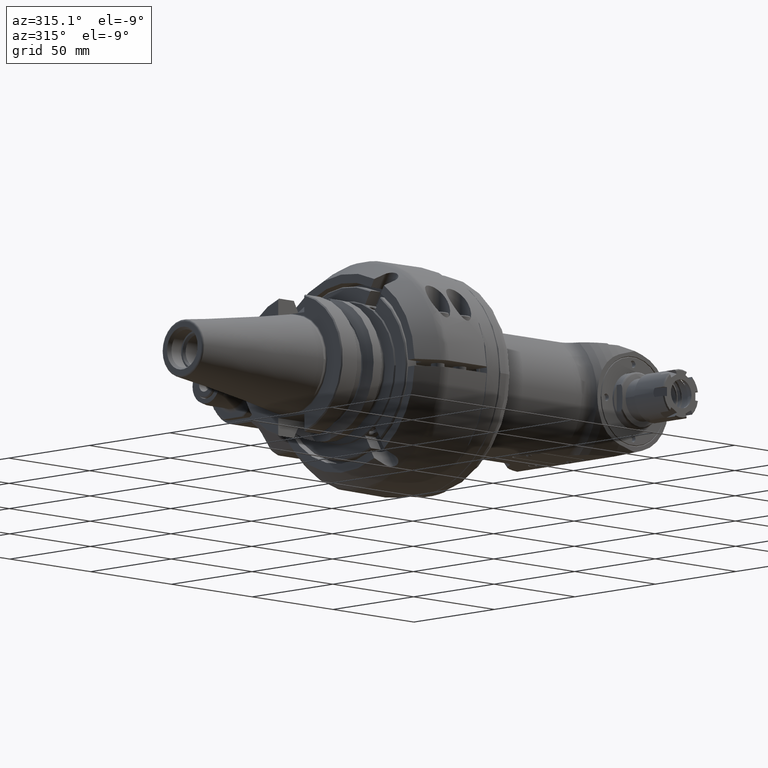
[diagram: clean part render]
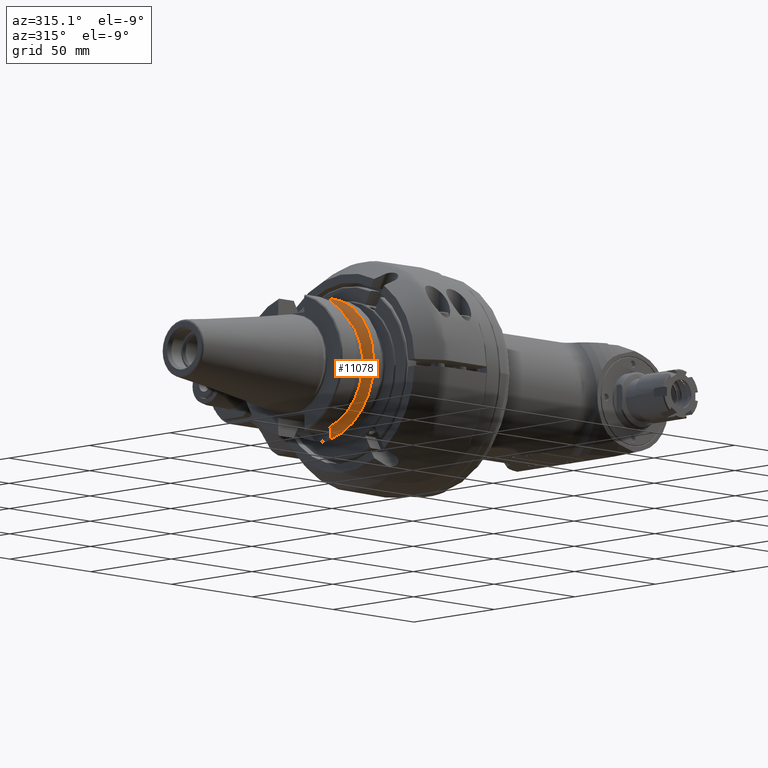
[diagram: same view with one face highlighted and labeled with its STEP entity id]
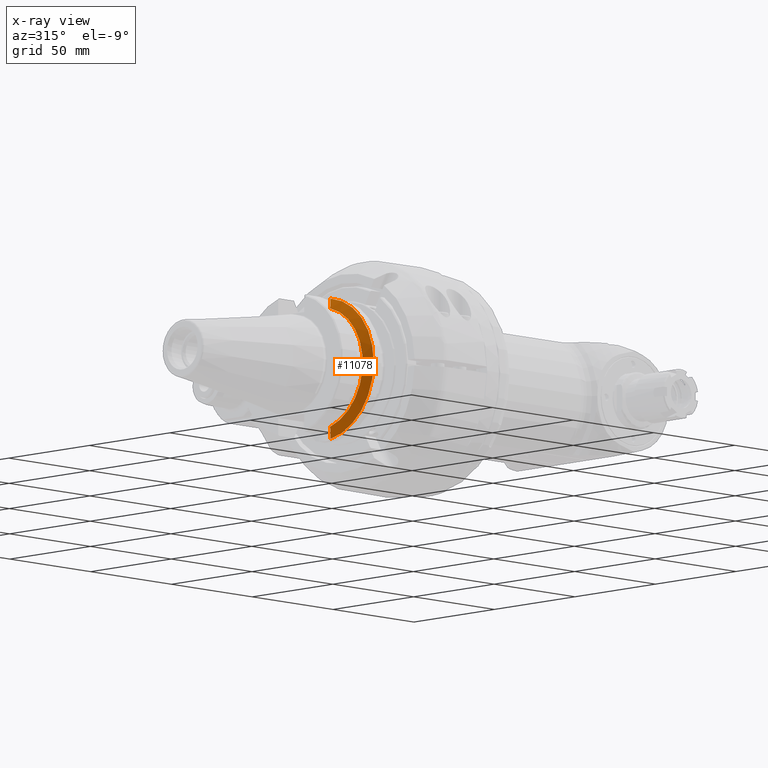
[diagram: x-ray of the same camera — body ghosted, the highlighted face saturated]
A machine part, auxiliary view. The second image highlights one B-rep face of the part: STEP entity #11078.
The next image is the same camera in x-ray: the body ghosted, the highlighted face saturated — about 0% of this face is hidden behind the body in this view.
In plain terms, the highlighted conical surface has half-angle 60 deg.
Its self-contained STEP definition (entity closure, byte-faithful):
#992=CIRCLE('',#12300,1.06967035507559);
#993=CIRCLE('',#12301,1.24015748031496);
#1204=CONICAL_SURFACE('',#12299,1.15491391769528,1.0471975511966);
#1797=FACE_OUTER_BOUND('',#2557,.T.);
#2557=EDGE_LOOP('',(#9769,#9770,#9771,#9772,#9773,#9774));
#2793=B_SPLINE_CURVE_WITH_KNOTS('',3,(#49364,#49365,#49366,#49367,#49368,
#49369),.UNSPECIFIED.,.F.,.F.,(4,2,4),(3.68842051935509,3.99940996028877,
4.23503741983749),.UNSPECIFIED.);
#2794=B_SPLINE_CURVE_WITH_KNOTS('',3,(#49521,#49522,#49523,#49524,#49525,
#49526,#49527,#49528,#49529,#49530,#49531,#49532,#49533,#49534,#49535,#49536),
 .UNSPECIFIED.,.F.,.F.,(4,2,2,2,2,2,2,4),(9.98828740521093E-7,0.00586463509307737,
0.0095562899912753,0.0118105774638015,0.0138441467853587,0.0158462323098269,
0.0177183820111912,0.0196311993223013),.UNSPECIFIED.);
#2803=B_SPLINE_CURVE_WITH_KNOTS('',3,(#49750,#49751,#49752,#49753,#49754,
#49755),.UNSPECIFIED.,.F.,.F.,(4,2,4),(-3.89563791299272,-3.58464847136601,
-3.3490210118173),.UNSPECIFIED.);
#2805=B_SPLINE_CURVE_WITH_KNOTS('',3,(#49933,#49934,#49935,#49936,#49937,
#49938,#49939,#49940,#49941,#49942,#49943,#49944,#49945,#49946,#49947,#49948),
 .UNSPECIFIED.,.F.,.F.,(4,2,2,2,2,2,2,4),(9.99987498796838E-7,0.00389664274996061,
0.00633707127921464,0.00828489843902712,0.0107040959102663,0.014452027372533,
0.0204121680729188,0.0270937158756613),.UNSPECIFIED.);
#5193=VERTEX_POINT('',#49275);
#5198=VERTEX_POINT('',#49362);
#5199=VERTEX_POINT('',#49520);
#5217=VERTEX_POINT('',#49681);
#5218=VERTEX_POINT('',#49749);
#5219=VERTEX_POINT('',#49907);
#6728=EDGE_CURVE('',#5193,#5198,#2793,.T.);
#6729=EDGE_CURVE('',#5199,#5193,#2794,.T.);
#6761=EDGE_CURVE('',#5217,#5218,#2803,.T.);
#6764=EDGE_CURVE('',#5217,#5219,#2805,.T.);
#6765=EDGE_CURVE('',#5218,#5198,#992,.T.);
#6766=EDGE_CURVE('',#5219,#5199,#993,.T.);
#9769=ORIENTED_EDGE('',*,*,#6765,.F.);
#9770=ORIENTED_EDGE('',*,*,#6761,.F.);
#9771=ORIENTED_EDGE('',*,*,#6764,.T.);
#9772=ORIENTED_EDGE('',*,*,#6766,.T.);
#9773=ORIENTED_EDGE('',*,*,#6729,.T.);
#9774=ORIENTED_EDGE('',*,*,#6728,.T.);
#11078=ADVANCED_FACE('',(#1797),#1204,.T.);
#12299=AXIS2_PLACEMENT_3D('',#49949,#15244,#15245);
#12300=AXIS2_PLACEMENT_3D('',#49950,#15246,#15247);
#12301=AXIS2_PLACEMENT_3D('',#49951,#15248,#15249);
#15244=DIRECTION('center_axis',(1.,0.,0.));
#15245=DIRECTION('ref_axis',(0.,-1.,0.));
#15246=DIRECTION('center_axis',(-1.,0.,0.));
#15247=DIRECTION('ref_axis',(0.,-0.253880030800102,-0.967235715821608));
#15248=DIRECTION('center_axis',(-1.,0.,0.));
#15249=DIRECTION('ref_axis',(0.,-1.,0.));
#49275=CARTESIAN_POINT('',(-2.53789423430152,-0.182158519295267,1.22238693915644));
#49362=CARTESIAN_POINT('',(-2.63385826771654,-0.271567942692598,1.03462337158465));
#49364=CARTESIAN_POINT('Ctrl Pts',(-2.53789423697245,-0.182158522432302,
1.22238694279173));
#49365=CARTESIAN_POINT('Ctrl Pts',(-2.55396889651231,-0.20504496554575,
1.19082686587027));
#49366=CARTESIAN_POINT('Ctrl Pts',(-2.57192187175582,-0.224235382339632,
1.15562559762375));
#49367=CARTESIAN_POINT('Ctrl Pts',(-2.60477104687236,-0.252481612088544,
1.0913666007687));
#49368=CARTESIAN_POINT('Ctrl Pts',(-2.61935321566829,-0.262841139750508,
1.0628885066148));
#49369=CARTESIAN_POINT('Ctrl Pts',(-2.63385826771652,-0.271567942692598,
1.03462337158464));
#49520=CARTESIAN_POINT('',(-2.53542747688164,-0.186082349864268,1.22611742220236));
#49521=CARTESIAN_POINT('Ctrl Pts',(-2.53542748112524,-0.186082349711364,
1.22611742119476));
#49522=CARTESIAN_POINT('Ctrl Pts',(-2.53542748293677,-0.185321494341616,
1.22623288963307));
#49523=CARTESIAN_POINT('Ctrl Pts',(-2.535479791581,-0.184552456912148,1.22625718760797));
#49524=CARTESIAN_POINT('Ctrl Pts',(-2.5356462034713,-0.183431963760759,
1.22613374833339));
#49525=CARTESIAN_POINT('Ctrl Pts',(-2.53573656436716,-0.182989182573911,
1.22604164552389));
#49526=CARTESIAN_POINT('Ctrl Pts',(-2.5359362529621,-0.182362028032602,
1.22578537584719));
#49527=CARTESIAN_POINT('Ctrl Pts',(-2.53602670759489,-0.182137508962432,
1.2256603552241));
#49528=CARTESIAN_POINT('Ctrl Pts',(-2.53623044074845,-0.181784056519049,
1.22535608845483));
#49529=CARTESIAN_POINT('Ctrl Pts',(-2.53633978561588,-0.181648360968484,
1.22518474391181));
#49530=CARTESIAN_POINT('Ctrl Pts',(-2.53659472071239,-0.18145522156222,
1.22476698495191));
#49531=CARTESIAN_POINT('Ctrl Pts',(-2.53672572269361,-0.181409053543496,
1.22454444473922));
#49532=CARTESIAN_POINT('Ctrl Pts',(-2.53697702199583,-0.181400342496338,
1.22410572039359));
#49533=CARTESIAN_POINT('Ctrl Pts',(-2.53713712362896,-0.181431136301974,
1.22382083642731));
#49534=CARTESIAN_POINT('Ctrl Pts',(-2.53753431915776,-0.181703854260678,
1.22308486660898));
#49535=CARTESIAN_POINT('Ctrl Pts',(-2.53772441994863,-0.181916744506212,
1.22272035183618));
#49536=CARTESIAN_POINT('Ctrl Pts',(-2.53789423647434,-0.182158523720321,
1.22238694347207));
#49681=CARTESIAN_POINT('',(-2.53789423414566,-0.182158519085949,-1.22238693930189));
#49749=CARTESIAN_POINT('',(-2.63385826771654,-0.271567942692598,-1.03462337158465));
#49750=CARTESIAN_POINT('Ctrl Pts',(-2.537894236865,-0.182158522279318,-1.22238694300269));
#49751=CARTESIAN_POINT('Ctrl Pts',(-2.55396889643226,-0.205044965460473,
-1.19082686602724));
#49752=CARTESIAN_POINT('Ctrl Pts',(-2.57192187171417,-0.224235382303821,
-1.15562559770522));
#49753=CARTESIAN_POINT('Ctrl Pts',(-2.60477104687236,-0.252481612088544,
-1.0913666007687));
#49754=CARTESIAN_POINT('Ctrl Pts',(-2.61935321566829,-0.262841139750508,
-1.0628885066148));
#49755=CARTESIAN_POINT('Ctrl Pts',(-2.63385826771652,-0.271567942692598,
-1.03462337158464));
#49907=CARTESIAN_POINT('',(-2.53542747687795,-0.186082349953378,-1.22611742214707));
#49933=CARTESIAN_POINT('Ctrl Pts',(-2.53789423635747,-0.182158523591694,
-1.22238694369589));
#49934=CARTESIAN_POINT('Ctrl Pts',(-2.53769933657609,-0.18188103202762,
-1.22276959908035));
#49935=CARTESIAN_POINT('Ctrl Pts',(-2.53747616489474,-0.181639396287989,
-1.22319627198318));
#49936=CARTESIAN_POINT('Ctrl Pts',(-2.53709270789502,-0.181425765981491,
-1.2238993952872));
#49937=CARTESIAN_POINT('Ctrl Pts',(-2.53693888107528,-0.181386317066882,
-1.22417458182745));
#49938=CARTESIAN_POINT('Ctrl Pts',(-2.5366530972296,-0.181432375178804,
-1.2246681533351));
#49939=CARTESIAN_POINT('Ctrl Pts',(-2.53652675672917,-0.181493833248842,
-1.22488026709312));
#49940=CARTESIAN_POINT('Ctrl Pts',(-2.53625636672231,-0.181737384137987,
-1.2253176105518));
#49941=CARTESIAN_POINT('Ctrl Pts',(-2.5361495992519,-0.181914343837134,
-1.22547830666856));
#49942=CARTESIAN_POINT('Ctrl Pts',(-2.53596844944624,-0.182269790028835,
-1.22574271043172));
#49943=CARTESIAN_POINT('Ctrl Pts',(-2.53587742794005,-0.182526510316167,
-1.22586391116714));
#49944=CARTESIAN_POINT('Ctrl Pts',(-2.53568442568034,-0.1832167157958,-1.226098984953));
#49945=CARTESIAN_POINT('Ctrl Pts',(-2.53559340159461,-0.183716024121017,
-1.22618373561651));
#49946=CARTESIAN_POINT('Ctrl Pts',(-2.53546023003848,-0.184853339639588,
-1.22624609058084));
#49947=CARTESIAN_POINT('Ctrl Pts',(-2.53542748258523,-0.185480903368537,
-1.22620869745489));
#49948=CARTESIAN_POINT('Ctrl Pts',(-2.53542748117875,-0.186082349792763,
-1.22611742108867));
#49949=CARTESIAN_POINT('Origin',(-2.58464287389134,0.,0.));
#49950=CARTESIAN_POINT('Origin',(-2.63385826771654,0.,0.));
#49951=CARTESIAN_POINT('Origin',(-2.53542748006614,0.,0.));